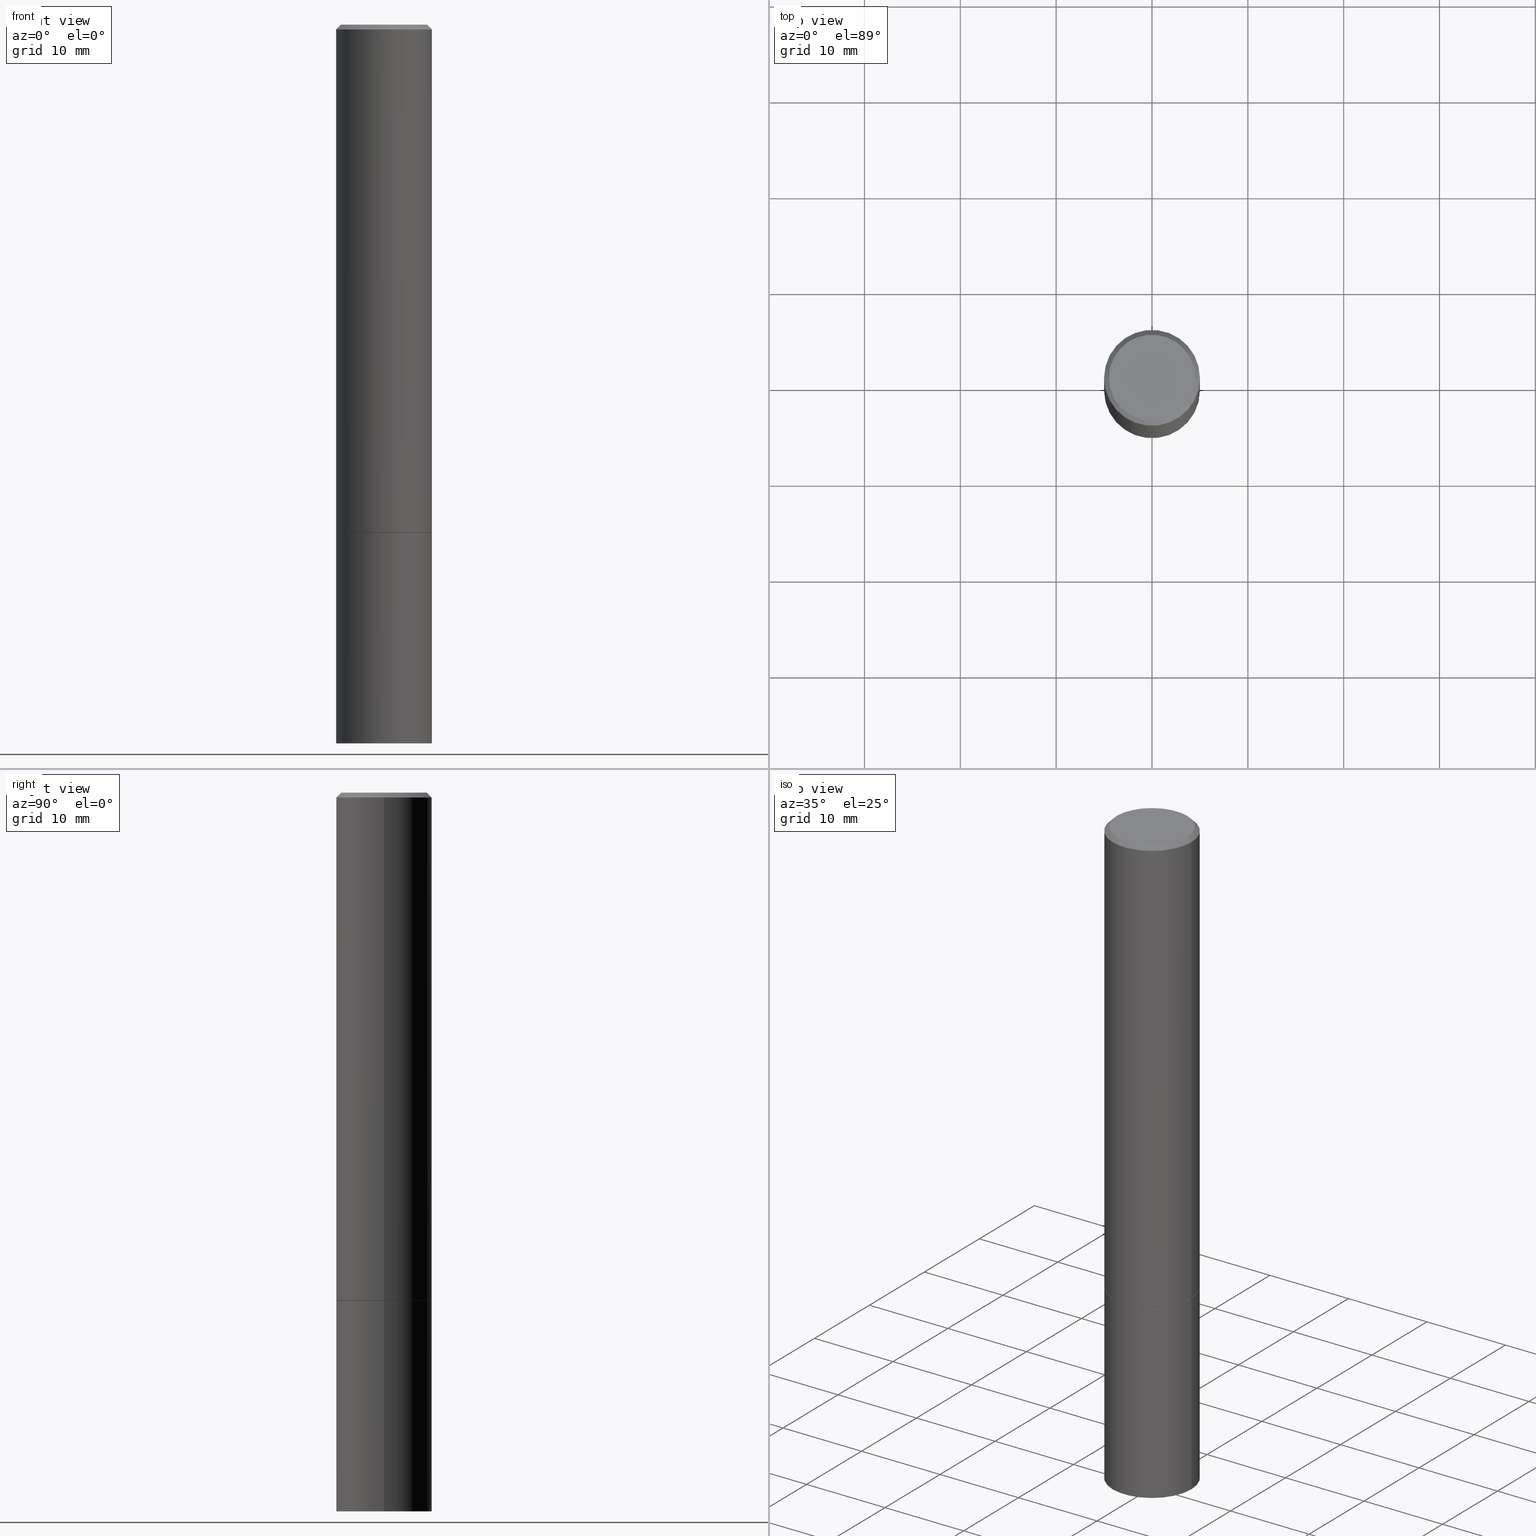
[diagram: canonical four-view strip — front | top / right | iso, engineering-drawing reading convention]
A machine part, canonical four-view strip (front | top / right | iso — engineering-drawing reading convention). The complete STEP part file that produces these views, byte-faithful:
ISO-10303-21;
HEADER;
FILE_DESCRIPTION (( 'STEP AP203' ),
    '1' );
FILE_NAME ('40557.STEP',
    '2024-02-28T02:18:00',
    ( '' ),
    ( '' ),
    'SwSTEP 2.0',
    'SolidWorks 2023',
    '' );
FILE_SCHEMA (( 'CONFIG_CONTROL_DESIGN' ));
ENDSEC;

DATA;
#1 = ORIENTED_EDGE ( 'NONE', *, *, #198, .F. ) ;
#2 = AXIS2_PLACEMENT_3D ( 'NONE', #13, #128, #274 ) ;
#3 = CARTESIAN_POINT ( 'NONE',  ( 0.000000000000000000, 0.000000000000000000, 0.000000000000000000 ) ) ;
#4 = DIMENSIONAL_EXPONENTS ( 1.000000000000000000, 0.000000000000000000, 0.000000000000000000, 0.000000000000000000, 0.000000000000000000, 0.000000000000000000, 0.000000000000000000 ) ;
#5 = CARTESIAN_POINT ( 'NONE',  ( 7.220980290903470182E-29, -1.030964609733603853E-14, -2.952799999999999869 ) ) ;
#6 = CARTESIAN_POINT ( 'NONE',  ( 1.374596203102592490E-15, 0.1968499999999927252, -2.086700000000000887 ) ) ;
#7 = CIRCLE ( 'NONE', #295, 0.1968499999999997752 ) ;
#8 = CARTESIAN_POINT ( 'NONE',  ( 1.374596203102613789E-15, 0.1968499999999896999, -2.952800000000000313 ) ) ;
#9 = DIRECTION ( 'NONE',  ( -0.7071067811865232589, 7.493145998870265808E-15, 0.7071067811865715536 ) ) ;
#10 = CARTESIAN_POINT ( 'NONE',  ( 5.100514289060338336E-29, -7.282182628425147921E-15, -2.085699999999999665 ) ) ;
#11 = PLANE ( 'NONE',  #56 ) ;
#12 = AXIS2_PLACEMENT_3D ( 'NONE', #342, #58, #234 ) ;
#13 = CARTESIAN_POINT ( 'NONE',  ( 7.220980290903470182E-29, -1.030964609733603853E-14, -2.952799999999999869 ) ) ;
#14 = APPLICATION_CONTEXT ( 'configuration controlled 3d designs of mechanical parts and assemblies' ) ;
#15 = DIRECTION ( 'NONE',  ( -2.445468806185136597E-29, 3.491481338843145583E-15, 1.000000000000000000 ) ) ;
#16 = CC_DESIGN_PERSON_AND_ORGANIZATION_ASSIGNMENT ( #208, #228, ( #159 ) ) ;
#17 = FACE_OUTER_BOUND ( 'NONE', #239, .T. ) ;
#18 = AXIS2_PLACEMENT_3D ( 'NONE', #8, #96, #184 ) ;
#19 = FACE_OUTER_BOUND ( 'NONE', #65, .T. ) ;
#20 = ORIENTED_EDGE ( 'NONE', *, *, #86, .F. ) ;
#21 = APPROVAL_STATUS ( 'not_yet_approved' ) ;
#22 = DATE_TIME_ROLE ( 'creation_date' ) ;
#23 = CIRCLE ( 'NONE', #197, 0.1968500000000000250 ) ;
#24 = ADVANCED_FACE ( 'NONE', ( #299 ), #11, .F. ) ;
#25 = DATE_AND_TIME ( #289, #63 ) ;
#26 = APPROVAL_DATE_TIME ( #138, #215 ) ;
#27 = APPROVAL_ROLE ( '' ) ;
#28 = DIRECTION ( 'NONE',  ( -2.445468806185136877E-29, 3.491481338843145188E-15, 1.000000000000000000 ) ) ;
#29 = VERTEX_POINT ( 'NONE', #149 ) ;
#30 = ORIENTED_EDGE ( 'NONE', *, *, #86, .T. ) ;
#31 = APPROVAL ( #21, 'UNSPECIFIED' ) ;
#32 = CARTESIAN_POINT ( 'NONE',  ( 0.1968500000000000250, -1.168424230043858014E-14, -2.952799999999999869 ) ) ;
#33 = VERTEX_POINT ( 'NONE', #32 ) ;
#34 = PRODUCT_DEFINITION_SHAPE ( 'NONE', 'NONE',  #298 ) ;
#35 = ADVANCED_FACE ( 'NONE', ( #120 ), #206, .T. ) ;
#36 = AXIS2_PLACEMENT_3D ( 'NONE', #3, #317, #212 ) ;
#37 = ORIENTED_EDGE ( 'NONE', *, *, #182, .T. ) ;
#38 = DIRECTION ( 'NONE',  ( 0.7071067811865469066, -7.319954787623252890E-15, -0.7071067811865479058 ) ) ;
#39 = ORIENTED_EDGE ( 'NONE', *, *, #182, .F. ) ;
#40 = DIRECTION ( 'NONE',  ( 1.000000000000000000, -6.982962677686266711E-15, 4.875932113059884174E-29 ) ) ;
#41 = AXIS2_PLACEMENT_3D ( 'NONE', #75, #276, #47 ) ;
#42 = ORGANIZATION ( 'UNSPECIFIED', 'UNSPECIFIED', '' ) ;
#43 = ORIENTED_EDGE ( 'NONE', *, *, #142, .F. ) ;
#44 = CARTESIAN_POINT ( 'NONE',  ( 5.102959757866523939E-29, -7.285674109763990928E-15, -2.086699999999999999 ) ) ;
#45 = PRODUCT ( '40557', '40557', '', ( #280 ) ) ;
#46 =( NAMED_UNIT ( * ) PLANE_ANGLE_UNIT ( ) SI_UNIT ( $, .RADIAN. ) );
#47 = DIRECTION ( 'NONE',  ( 1.000000000000000000, -6.982962677686268288E-15, 0.000000000000000000 ) ) ;
#48 = PERSON_AND_ORGANIZATION ( #185, #42 ) ;
#49 = VERTEX_POINT ( 'NONE', #68 ) ;
#50 = CARTESIAN_POINT ( 'NONE',  ( -0.1968500000000000250, 1.398703375343757393E-15, -9.682923725166783677E-30 ) ) ;
#51 = VECTOR ( 'NONE', #9, 39.37007874015748854 ) ;
#52 = DIRECTION ( 'NONE',  ( 1.000000000000000000, -6.982962677686268288E-15, 0.000000000000000000 ) ) ;
#53 = ORIENTED_EDGE ( 'NONE', *, *, #316, .T. ) ;
#54 = PERSON_AND_ORGANIZATION ( #185, #42 ) ;
#55 = COORDINATED_UNIVERSAL_TIME_OFFSET ( 5, 0, .BEHIND. ) ;
#56 = AXIS2_PLACEMENT_3D ( 'NONE', #6, #340, #186 ) ;
#57 = PERSON_AND_ORGANIZATION ( #185, #42 ) ;
#58 = DIRECTION ( 'NONE',  ( -2.445468806185136597E-29, 3.491481338843145583E-15, 1.000000000000000000 ) ) ;
#59 = ORIENTED_EDGE ( 'NONE', *, *, #76, .F. ) ;
#60 = PERSON_AND_ORGANIZATION_ROLE ( 'creator' ) ;
#61 = CARTESIAN_POINT ( 'NONE',  ( 4.890937612370276662E-31, -6.982962677686296539E-17, -0.02000000000000001776 ) ) ;
#62 = CONICAL_SURFACE ( 'NONE', #359, 0.1968499999999997752, 0.7853981633974476129 ) ;
#63 = LOCAL_TIME ( 21, 18, 0.000000000000000000, #137 ) ;
#64 = CARTESIAN_POINT ( 'NONE',  ( -0.1968499999999999139, 1.398703375343756604E-15, -9.682923725166778072E-30 ) ) ;
#65 = EDGE_LOOP ( 'NONE', ( #89, #53, #308, #290 ) ) ;
#66 = ORIENTED_EDGE ( 'NONE', *, *, #320, .T. ) ;
#67 = CIRCLE ( 'NONE', #2, 0.1968500000000000250 ) ;
#68 = CARTESIAN_POINT ( 'NONE',  ( -0.1958499999999999963, -5.888777707429612535E-15, -2.086699999999999999 ) ) ;
#69 = ORIENTED_EDGE ( 'NONE', *, *, #316, .F. ) ;
#70 = DESIGN_CONTEXT ( 'detailed design', #282, 'design' ) ;
#71 = CARTESIAN_POINT ( 'NONE',  ( 0.1968499999999997752, -1.420318657638187347E-15, -0.02000000000000001776 ) ) ;
#72 = LENGTH_MEASURE_WITH_UNIT ( LENGTH_MEASURE( 0.02539999999999999897 ), #252 );
#73 = AXIS2_PLACEMENT_3D ( 'NONE', #61, #176, #292 ) ;
#74 = CIRCLE ( 'NONE', #135, 0.1968500000000000250 ) ;
#75 = CARTESIAN_POINT ( 'NONE',  ( 5.102959757866523939E-29, -7.285674109763990928E-15, -2.086699999999999999 ) ) ;
#76 = EDGE_CURVE ( 'NONE', #29, #261, #7, .T. ) ;
#77 = EDGE_CURVE ( 'NONE', #263, #192, #345, .T. ) ;
#78 = DIRECTION ( 'NONE',  ( 2.445468806185136597E-29, -3.491481338843145583E-15, -1.000000000000000000 ) ) ;
#79 = LINE ( 'NONE', #196, #88 ) ;
#80 = CC_DESIGN_PERSON_AND_ORGANIZATION_ASSIGNMENT ( #171, #167, ( #109 ) ) ;
#81 = CONICAL_SURFACE ( 'NONE', #73, 0.1968499999999997752, 0.7853981633974476129 ) ;
#82 = EDGE_LOOP ( 'NONE', ( #348, #124 ) ) ;
#83 = APPROVAL_PERSON_ORGANIZATION ( #318, #31, #27 ) ;
#84 = EDGE_CURVE ( 'NONE', #314, #49, #313, .T. ) ;
#85 = APPROVAL_ROLE ( '' ) ;
#86 = EDGE_CURVE ( 'NONE', #91, #177, #278, .T. ) ;
#87 = PERSON_AND_ORGANIZATION ( #185, #42 ) ;
#88 = VECTOR ( 'NONE', #310, 39.37007874015748854 ) ;
#89 = ORIENTED_EDGE ( 'NONE', *, *, #84, .T. ) ;
#90 = APPROVAL_DATE_TIME ( #25, #269 ) ;
#91 = VERTEX_POINT ( 'NONE', #229 ) ;
#92 = ORIENTED_EDGE ( 'NONE', *, *, #114, .T. ) ;
#93 = DIRECTION ( 'NONE',  ( -2.445468806185136597E-29, 3.491481338843145583E-15, 1.000000000000000000 ) ) ;
#94 = DIRECTION ( 'NONE',  ( -2.445468806185136597E-29, 3.491481338843145583E-15, 1.000000000000000000 ) ) ;
#95 = ORIENTED_EDGE ( 'NONE', *, *, #142, .T. ) ;
#96 = DIRECTION ( 'NONE',  ( 2.438088387897960049E-29, -3.491481338843145188E-15, -1.000000000000000000 ) ) ;
#97 = CARTESIAN_POINT ( 'NONE',  ( -0.1958499999999999963, -5.894076161777834937E-15, -2.086699999999999999 ) ) ;
#98 = DIRECTION ( 'NONE',  ( -2.445468806185136597E-29, 3.491481338843145583E-15, 1.000000000000000000 ) ) ;
#99 = APPLICATION_PROTOCOL_DEFINITION ( 'international standard', 'config_control_design', 1994, #14 ) ;
#100 = DIRECTION ( 'NONE',  ( 1.000000000000000000, -6.982962677686266711E-15, 4.875932113059884174E-29 ) ) ;
#101 = PERSON_AND_ORGANIZATION_ROLE ( 'design_owner' ) ;
#102 = DIRECTION ( 'NONE',  ( -2.445468806185136877E-29, 3.491481338843145188E-15, 1.000000000000000000 ) ) ;
#103 = EDGE_CURVE ( 'NONE', #33, #263, #344, .T. ) ;
#104 = FACE_OUTER_BOUND ( 'NONE', #293, .T. ) ;
#105 = DIRECTION ( 'NONE',  ( -2.445468806185136597E-29, 3.491481338843145583E-15, 1.000000000000000000 ) ) ;
#106 = VERTEX_POINT ( 'NONE', #264 ) ;
#107 = APPROVAL_STATUS ( 'not_yet_approved' ) ;
#108 = AXIS2_PLACEMENT_3D ( 'NONE', #213, #187, #266 ) ;
#109 = PRODUCT_DEFINITION_FORMATION_WITH_SPECIFIED_SOURCE ( 'ANY', '', #45, .NOT_KNOWN. ) ;
#110 = COORDINATED_UNIVERSAL_TIME_OFFSET ( 5, 0, .BEHIND. ) ;
#111 = DIRECTION ( 'NONE',  ( 1.000000000000000000, -6.982962677686266711E-15, 0.000000000000000000 ) ) ;
#112 = ADVANCED_FACE ( 'NONE', ( #145 ), #173, .T. ) ;
#113 = AXIS2_PLACEMENT_3D ( 'NONE', #324, #93, #117 ) ;
#114 = EDGE_CURVE ( 'NONE', #143, #33, #23, .T. ) ;
#115 = VECTOR ( 'NONE', #38, 39.37007874015748854 ) ;
#116 = CARTESIAN_POINT ( 'NONE',  ( 4.890937612370276662E-31, -6.982962677686296539E-17, -0.02000000000000001776 ) ) ;
#117 = DIRECTION ( 'NONE',  ( 1.000000000000000000, -6.982962677686265922E-15, 4.876176775795935793E-29 ) ) ;
#118 = EDGE_LOOP ( 'NONE', ( #214, #151, #349, #1 ) ) ;
#119 = CARTESIAN_POINT ( 'NONE',  ( 5.102959757866523939E-29, -7.285674109763990928E-15, -2.086699999999999999 ) ) ;
#120 = FACE_OUTER_BOUND ( 'NONE', #330, .T. ) ;
#121 = AXIS2_PLACEMENT_3D ( 'NONE', #360, #15, #100 ) ;
#122 = ORIENTED_EDGE ( 'NONE', *, *, #103, .F. ) ;
#123 = PLANE ( 'NONE',  #18 ) ;
#124 = ORIENTED_EDGE ( 'NONE', *, *, #311, .F. ) ;
#125 = DIRECTION ( 'NONE',  ( -2.445468806185136597E-29, 3.491481338843145583E-15, 1.000000000000000000 ) ) ;
#126 = AXIS2_PLACEMENT_3D ( 'NONE', #221, #223, #248 ) ;
#127 = FACE_OUTER_BOUND ( 'NONE', #118, .T. ) ;
#128 = DIRECTION ( 'NONE',  ( -2.445468806185136597E-29, 3.491481338843145583E-15, 1.000000000000000000 ) ) ;
#129 = ADVANCED_BREP_SHAPE_REPRESENTATION ( '40557', ( #294, #170, #154 ), #180 ) ;
#130 = FACE_OUTER_BOUND ( 'NONE', #183, .T. ) ;
#131 = EDGE_CURVE ( 'NONE', #232, #29, #209, .T. ) ;
#132 = PLANE ( 'NONE',  #277 ) ;
#133 =( NAMED_UNIT ( * ) SI_UNIT ( $, .STERADIAN. ) SOLID_ANGLE_UNIT ( ) );
#134 = AXIS2_PLACEMENT_3D ( 'NONE', #361, #105, #333 ) ;
#135 = AXIS2_PLACEMENT_3D ( 'NONE', #10, #125, #242 ) ;
#136 = CARTESIAN_POINT ( 'NONE',  ( -0.1968500000000000250, -2.277302752257247033E-15, -2.085699999999999665 ) ) ;
#137 = COORDINATED_UNIVERSAL_TIME_OFFSET ( 5, 0, .BEHIND. ) ;
#138 = DATE_AND_TIME ( #257, #303 ) ;
#139 = AXIS2_PLACEMENT_3D ( 'NONE', #188, #265, #40 ) ;
#140 = SECURITY_CLASSIFICATION_LEVEL ( 'unclassified' ) ;
#141 = ADVANCED_FACE ( 'NONE', ( #319 ), #81, .T. ) ;
#142 = EDGE_CURVE ( 'NONE', #232, #106, #309, .T. ) ;
#143 = VERTEX_POINT ( 'NONE', #267 ) ;
#144 = DATE_AND_TIME ( #205, #351 ) ;
#145 = FACE_OUTER_BOUND ( 'NONE', #358, .T. ) ;
#146 = AXIS2_PLACEMENT_3D ( 'NONE', #353, #98, #158 ) ;
#147 = ORIENTED_EDGE ( 'NONE', *, *, #77, .T. ) ;
#148 = CC_DESIGN_SECURITY_CLASSIFICATION ( #159, ( #109 ) ) ;
#149 = CARTESIAN_POINT ( 'NONE',  ( -0.1968499999999997752, 1.304766576325677127E-15, -0.02000000000000001776 ) ) ;
#150 = CARTESIAN_POINT ( 'NONE',  ( 5.100514289060338336E-29, -7.282182628425147921E-15, -2.085699999999999665 ) ) ;
#151 = ORIENTED_EDGE ( 'NONE', *, *, #131, .T. ) ;
#152 = PRODUCT_RELATED_PRODUCT_CATEGORY ( 'detail', '', ( #45 ) ) ;
#153 = AXIS2_PLACEMENT_3D ( 'NONE', #165, #162, #331 ) ;
#154 = AXIS2_PLACEMENT_3D ( 'NONE', #332, #362, #354 ) ;
#155 = LINE ( 'NONE', #97, #51 ) ;
#156 = PLANE ( 'NONE',  #108 ) ;
#157 = DIRECTION ( 'NONE',  ( -2.445468806185136597E-29, 3.491481338843145583E-15, 1.000000000000000000 ) ) ;
#158 = DIRECTION ( 'NONE',  ( 1.000000000000000000, -6.982962677686266711E-15, 4.876176775795935793E-29 ) ) ;
#159 = SECURITY_CLASSIFICATION ( '', '', #140 ) ;
#160 = ORIENTED_EDGE ( 'NONE', *, *, #249, .F. ) ;
#161 = CYLINDRICAL_SURFACE ( 'NONE', #134, 0.1968499999999999139 ) ;
#162 = DIRECTION ( 'NONE',  ( -2.445468806185136597E-29, 3.491481338843145583E-15, 1.000000000000000000 ) ) ;
#163 = FACE_OUTER_BOUND ( 'NONE', #195, .T. ) ;
#164 = AXIS2_PLACEMENT_3D ( 'NONE', #116, #244, #273 ) ;
#165 = CARTESIAN_POINT ( 'NONE',  ( 5.102959757866523939E-29, -7.285674109763990928E-15, -2.086699999999999999 ) ) ;
#166 = ORIENTED_EDGE ( 'NONE', *, *, #114, .F. ) ;
#167 = PERSON_AND_ORGANIZATION_ROLE ( 'design_supplier' ) ;
#168 = VECTOR ( 'NONE', #283, 39.37007874015748854 ) ;
#169 = ADVANCED_FACE ( 'NONE', ( #127 ), #243, .T. ) ;
#170 = MANIFOLD_SOLID_BREP ( 'Body-Move/Copy2[2]', #241 ) ;
#171 = PERSON_AND_ORGANIZATION ( #185, #42 ) ;
#172 = DATE_AND_TIME ( #363, #226 ) ;
#173 = CYLINDRICAL_SURFACE ( 'NONE', #113, 0.1968500000000000250 ) ;
#174 = EDGE_LOOP ( 'NONE', ( #364, #66, #334, #39 ) ) ;
#175 = DIRECTION ( 'NONE',  ( -2.445468806185136877E-29, 3.491481338843145188E-15, 1.000000000000000000 ) ) ;
#176 = DIRECTION ( 'NONE',  ( 2.445468806185136597E-29, -3.491481338843145583E-15, -1.000000000000000000 ) ) ;
#177 = VERTEX_POINT ( 'NONE', #329 ) ;
#178 = AXIS2_PLACEMENT_3D ( 'NONE', #44, #245, #52 ) ;
#179 = ADVANCED_FACE ( 'NONE', ( #304 ), #132, .F. ) ;
#180 =( GEOMETRIC_REPRESENTATION_CONTEXT ( 3 ) GLOBAL_UNCERTAINTY_ASSIGNED_CONTEXT ( ( #181 ) ) GLOBAL_UNIT_ASSIGNED_CONTEXT ( ( #300, #46, #133 ) ) REPRESENTATION_CONTEXT ( 'NONE', 'WORKASPACE' ) );
#181 = UNCERTAINTY_MEASURE_WITH_UNIT (LENGTH_MEASURE( 1.000000000000000082E-05 ), #300, 'distance_accuracy_value', 'NONE');
#182 = EDGE_CURVE ( 'NONE', #91, #29, #305, .T. ) ;
#183 = EDGE_LOOP ( 'NONE', ( #258, #166 ) ) ;
#184 = DIRECTION ( 'NONE',  ( -1.000000000000000000, 6.982962677686265922E-15, -4.876176775795935793E-29 ) ) ;
#185 = PERSON ( 'UNSPECIFIED', 'UNSPECIFIED', 'UNSPECIFIED', ('UNSPECIFIED'), ('UNSPECIFIED'), ('UNSPECIFIED') ) ;
#186 = DIRECTION ( 'NONE',  ( -1.000000000000000000, 6.982962677686265922E-15, -4.876176775795935793E-29 ) ) ;
#187 = DIRECTION ( 'NONE',  ( -2.438088387897960049E-29, 3.491481338843145188E-15, 1.000000000000000000 ) ) ;
#188 = CARTESIAN_POINT ( 'NONE',  ( -1.043851414335219820E-46, 1.490343170380447200E-32, 4.268512490100411279E-18 ) ) ;
#189 = ORIENTED_EDGE ( 'NONE', *, *, #198, .T. ) ;
#190 = CARTESIAN_POINT ( 'NONE',  ( -0.1968499999999997752, 1.304766576325677127E-15, -0.02000000000000001776 ) ) ;
#191 = APPROVAL_PERSON_ORGANIZATION ( #87, #269, #85 ) ;
#192 = VERTEX_POINT ( 'NONE', #251 ) ;
#193 = DIRECTION ( 'NONE',  ( 2.438088387897960049E-29, -3.491481338843145188E-15, -1.000000000000000000 ) ) ;
#194 = DIRECTION ( 'NONE',  ( -1.000000000000000000, 6.982962677686266711E-15, 0.000000000000000000 ) ) ;
#195 = EDGE_LOOP ( 'NONE', ( #237, #95, #189, #59 ) ) ;
#196 = CARTESIAN_POINT ( 'NONE',  ( 0.1958499999999999963, -8.653287350188846522E-15, -2.086699999999999999 ) ) ;
#197 = AXIS2_PLACEMENT_3D ( 'NONE', #5, #210, #231 ) ;
#198 = EDGE_CURVE ( 'NONE', #106, #261, #220, .T. ) ;
#199 = CC_DESIGN_APPROVAL ( #215, ( #159 ) ) ;
#200 = ORIENTED_EDGE ( 'NONE', *, *, #77, .F. ) ;
#201 = DATE_TIME_ROLE ( 'classification_date' ) ;
#202 = ADVANCED_FACE ( 'NONE', ( #104 ), #286, .T. ) ;
#203 = CALENDAR_DATE ( 2024, 27, 2 ) ;
#204 = VECTOR ( 'NONE', #279, 39.37007874015748143 ) ;
#205 = CALENDAR_DATE ( 2024, 27, 2 ) ;
#206 = CYLINDRICAL_SURFACE ( 'NONE', #36, 0.1968500000000000250 ) ;
#207 = ORIENTED_EDGE ( 'NONE', *, *, #288, .T. ) ;
#208 = PERSON_AND_ORGANIZATION ( #185, #42 ) ;
#209 = LINE ( 'NONE', #64, #350 ) ;
#210 = DIRECTION ( 'NONE',  ( -2.445468806185136597E-29, 3.491481338843145583E-15, 1.000000000000000000 ) ) ;
#211 = AXIS2_PLACEMENT_3D ( 'NONE', #119, #322, #347 ) ;
#212 = DIRECTION ( 'NONE',  ( 1.000000000000000000, -6.982962677686265922E-15, 4.876176775795935793E-29 ) ) ;
#213 = CARTESIAN_POINT ( 'NONE',  ( 5.102959757866523939E-29, -7.285674109763990928E-15, -2.086699999999999999 ) ) ;
#214 = ORIENTED_EDGE ( 'NONE', *, *, #366, .T. ) ;
#215 = APPROVAL ( #259, 'UNSPECIFIED' ) ;
#216 = CARTESIAN_POINT ( 'NONE',  ( 4.890937612370276662E-31, -6.982962677686296539E-17, -0.02000000000000001776 ) ) ;
#217 = CARTESIAN_POINT ( 'NONE',  ( 0.1958499999999999963, -8.653287350188846522E-15, -2.086699999999999999 ) ) ;
#218 = ADVANCED_FACE ( 'NONE', ( #19 ), #335, .T. ) ;
#219 = CIRCLE ( 'NONE', #153, 0.1968500000000000250 ) ;
#220 = LINE ( 'NONE', #355, #224 ) ;
#221 = CARTESIAN_POINT ( 'NONE',  ( 5.102959757866523939E-29, -7.285674109763990928E-15, -2.086699999999999999 ) ) ;
#222 = ORIENTED_EDGE ( 'NONE', *, *, #103, .T. ) ;
#223 = DIRECTION ( 'NONE',  ( -2.445468806185136597E-29, 3.491481338843145583E-15, 1.000000000000000000 ) ) ;
#224 = VECTOR ( 'NONE', #102, 39.37007874015748143 ) ;
#225 = DATE_AND_TIME ( #203, #321 ) ;
#226 = LOCAL_TIME ( 21, 18, 0.000000000000000000, #312 ) ;
#227 = EDGE_CURVE ( 'NONE', #177, #91, #328, .T. ) ;
#228 = PERSON_AND_ORGANIZATION_ROLE ( 'classification_officer' ) ;
#229 = CARTESIAN_POINT ( 'NONE',  ( -0.1768499999999997851, 1.269851762937246069E-15, 4.268512490091652920E-18 ) ) ;
#230 = FACE_OUTER_BOUND ( 'NONE', #82, .T. ) ;
#231 = DIRECTION ( 'NONE',  ( 1.000000000000000000, -6.982962677686267499E-15, 0.000000000000000000 ) ) ;
#232 = VERTEX_POINT ( 'NONE', #136 ) ;
#233 = CARTESIAN_POINT ( 'NONE',  ( 0.1968500000000000250, -1.374596203102541608E-15, 9.598753983154300858E-30 ) ) ;
#234 = DIRECTION ( 'NONE',  ( 1.000000000000000000, -6.982962677686267499E-15, 0.000000000000000000 ) ) ;
#235 = VECTOR ( 'NONE', #28, 39.37007874015748143 ) ;
#236 = ORIENTED_EDGE ( 'NONE', *, *, #320, .F. ) ;
#237 = ORIENTED_EDGE ( 'NONE', *, *, #131, .F. ) ;
#238 = CC_DESIGN_DATE_AND_TIME_ASSIGNMENT ( #225, #201, ( #159 ) ) ;
#239 = EDGE_LOOP ( 'NONE', ( #236, #20, #37, #272 ) ) ;
#240 = LINE ( 'NONE', #296, #115 ) ;
#241 = CLOSED_SHELL ( 'NONE', ( #218, #169, #141, #250, #285, #202, #338, #179 ) ) ;
#242 = DIRECTION ( 'NONE',  ( 1.000000000000000000, -6.982962677686267499E-15, 0.000000000000000000 ) ) ;
#243 = CYLINDRICAL_SURFACE ( 'NONE', #146, 0.1968499999999999139 ) ;
#244 = DIRECTION ( 'NONE',  ( -2.445468806185136597E-29, 3.491481338843145583E-15, 1.000000000000000000 ) ) ;
#245 = DIRECTION ( 'NONE',  ( -2.445468806185136597E-29, 3.491481338843145583E-15, 1.000000000000000000 ) ) ;
#246 = CC_DESIGN_PERSON_AND_ORGANIZATION_ASSIGNMENT ( #54, #337, ( #109 ) ) ;
#247 = DIRECTION ( 'NONE',  ( -1.000000000000000000, 6.982962677686265922E-15, -4.876176775795935793E-29 ) ) ;
#248 = DIRECTION ( 'NONE',  ( 1.000000000000000000, -6.982962677686268288E-15, 0.000000000000000000 ) ) ;
#249 = EDGE_CURVE ( 'NONE', #192, #263, #219, .T. ) ;
#250 = ADVANCED_FACE ( 'NONE', ( #17 ), #62, .T. ) ;
#251 = CARTESIAN_POINT ( 'NONE',  ( -0.1968500000000000250, -7.398956728206258518E-15, -2.086699999999999999 ) ) ;
#252 =( LENGTH_UNIT ( ) NAMED_UNIT ( * ) SI_UNIT ( $, .METRE. ) );
#253 = APPROVAL_DATE_TIME ( #172, #31 ) ;
#254 = EDGE_CURVE ( 'NONE', #143, #192, #306, .T. ) ;
#255 = CIRCLE ( 'NONE', #178, 0.1958499999999999963 ) ;
#256 = SHAPE_DEFINITION_REPRESENTATION ( #34, #129 ) ;
#257 = CALENDAR_DATE ( 2024, 27, 2 ) ;
#258 = ORIENTED_EDGE ( 'NONE', *, *, #275, .F. ) ;
#259 = APPROVAL_STATUS ( 'not_yet_approved' ) ;
#260 = AXIS2_PLACEMENT_3D ( 'NONE', #150, #94, #297 ) ;
#261 = VERTEX_POINT ( 'NONE', #71 ) ;
#262 = CC_DESIGN_DATE_AND_TIME_ASSIGNMENT ( #144, #22, ( #298 ) ) ;
#263 = VERTEX_POINT ( 'NONE', #327 ) ;
#264 = CARTESIAN_POINT ( 'NONE',  ( 0.1968500000000000250, -8.656778831527691107E-15, -2.085699999999999665 ) ) ;
#265 = DIRECTION ( 'NONE',  ( -2.445468806185136597E-29, 3.491481338843145583E-15, 1.000000000000000000 ) ) ;
#266 = DIRECTION ( 'NONE',  ( 1.000000000000000000, -6.982962677686265922E-15, 4.876176775795935793E-29 ) ) ;
#267 = CARTESIAN_POINT ( 'NONE',  ( -0.1968500000000000250, -7.398956728206258518E-15, -2.952799999999999869 ) ) ;
#268 = CIRCLE ( 'NONE', #164, 0.1968499999999997752 ) ;
#269 = APPROVAL ( #107, 'UNSPECIFIED' ) ;
#270 = CC_DESIGN_APPROVAL ( #269, ( #109 ) ) ;
#271 = CARTESIAN_POINT ( 'NONE',  ( 4.890937612370276662E-31, -6.982962677686296539E-17, -0.02000000000000001776 ) ) ;
#272 = ORIENTED_EDGE ( 'NONE', *, *, #76, .T. ) ;
#273 = DIRECTION ( 'NONE',  ( 1.000000000000000000, -6.982962677686266711E-15, 0.000000000000000000 ) ) ;
#274 = DIRECTION ( 'NONE',  ( 1.000000000000000000, -6.982962677686267499E-15, 0.000000000000000000 ) ) ;
#275 = EDGE_CURVE ( 'NONE', #33, #143, #67, .T. ) ;
#276 = DIRECTION ( 'NONE',  ( -2.445468806185136597E-29, 3.491481338843145583E-15, 1.000000000000000000 ) ) ;
#277 = AXIS2_PLACEMENT_3D ( 'NONE', #356, #193, #247 ) ;
#278 = CIRCLE ( 'NONE', #139, 0.1768499999999997851 ) ;
#279 = DIRECTION ( 'NONE',  ( -2.445468806185136877E-29, 3.491481338843145188E-15, 1.000000000000000000 ) ) ;
#280 = MECHANICAL_CONTEXT ( 'NONE', #14, 'mechanical' ) ;
#281 = ORIENTED_EDGE ( 'NONE', *, *, #254, .T. ) ;
#282 = APPLICATION_CONTEXT ( 'configuration controlled 3d designs of mechanical parts and assemblies' ) ;
#283 = DIRECTION ( 'NONE',  ( -0.7071067811865469066, 2.468850131082251144E-15, -0.7071067811865479058 ) ) ;
#284 = APPROVAL_ROLE ( '' ) ;
#285 = ADVANCED_FACE ( 'NONE', ( #163 ), #161, .T. ) ;
#286 = CONICAL_SURFACE ( 'NONE', #126, 0.1958499999999999963, 0.7853981633974141952 ) ;
#287 = APPLICATION_PROTOCOL_DEFINITION ( 'international standard', 'config_control_design', 1994, #282 ) ;
#288 = EDGE_CURVE ( 'NONE', #314, #106, #79, .T. ) ;
#289 = CALENDAR_DATE ( 2024, 27, 2 ) ;
#290 = ORIENTED_EDGE ( 'NONE', *, *, #288, .F. ) ;
#291 = ORIENTED_EDGE ( 'NONE', *, *, #311, .T. ) ;
#292 = DIRECTION ( 'NONE',  ( -1.000000000000000000, 6.982962677686266711E-15, 0.000000000000000000 ) ) ;
#293 = EDGE_LOOP ( 'NONE', ( #69, #291, #207, #43 ) ) ;
#294 = MANIFOLD_SOLID_BREP ( 'Body-Move/Copy2[1]', #302 ) ;
#295 = AXIS2_PLACEMENT_3D ( 'NONE', #216, #157, #111 ) ;
#296 = CARTESIAN_POINT ( 'NONE',  ( 0.1968499999999997752, -1.420318657638187347E-15, -0.02000000000000001776 ) ) ;
#297 = DIRECTION ( 'NONE',  ( 1.000000000000000000, -6.982962677686267499E-15, 0.000000000000000000 ) ) ;
#298 = PRODUCT_DEFINITION ( 'UNKNOWN', '', #109, #70 ) ;
#299 = FACE_OUTER_BOUND ( 'NONE', #301, .T. ) ;
#300 =( CONVERSION_BASED_UNIT ( 'INCH', #72 ) LENGTH_UNIT ( ) NAMED_UNIT ( #4 ) );
#301 = EDGE_LOOP ( 'NONE', ( #147, #323 ) ) ;
#302 = CLOSED_SHELL ( 'NONE', ( #35, #315, #24, #112 ) ) ;
#303 = LOCAL_TIME ( 21, 18, 0.000000000000000000, #55 ) ;
#304 = FACE_OUTER_BOUND ( 'NONE', #325, .T. ) ;
#305 = LINE ( 'NONE', #190, #168 ) ;
#306 = LINE ( 'NONE', #50, #204 ) ;
#307 = CC_DESIGN_PERSON_AND_ORGANIZATION_ASSIGNMENT ( #341, #60, ( #298 ) ) ;
#308 = ORIENTED_EDGE ( 'NONE', *, *, #366, .F. ) ;
#309 = CIRCLE ( 'NONE', #260, 0.1968500000000000250 ) ;
#310 = DIRECTION ( 'NONE',  ( 0.7071067811865232589, -2.468850131082003836E-15, 0.7071067811865715536 ) ) ;
#311 = EDGE_CURVE ( 'NONE', #49, #314, #255, .T. ) ;
#312 = COORDINATED_UNIVERSAL_TIME_OFFSET ( 5, 0, .BEHIND. ) ;
#313 = CIRCLE ( 'NONE', #211, 0.1958499999999999963 ) ;
#314 = VERTEX_POINT ( 'NONE', #217 ) ;
#315 = ADVANCED_FACE ( 'NONE', ( #130 ), #123, .T. ) ;
#316 = EDGE_CURVE ( 'NONE', #49, #232, #155, .T. ) ;
#317 = DIRECTION ( 'NONE',  ( -2.445468806185136597E-29, 3.491481338843145583E-15, 1.000000000000000000 ) ) ;
#318 = PERSON_AND_ORGANIZATION ( #185, #42 ) ;
#319 = FACE_OUTER_BOUND ( 'NONE', #174, .T. ) ;
#320 = EDGE_CURVE ( 'NONE', #177, #261, #240, .T. ) ;
#321 = LOCAL_TIME ( 21, 18, 0.000000000000000000, #110 ) ;
#322 = DIRECTION ( 'NONE',  ( -2.445468806185136597E-29, 3.491481338843145583E-15, 1.000000000000000000 ) ) ;
#323 = ORIENTED_EDGE ( 'NONE', *, *, #249, .T. ) ;
#324 = CARTESIAN_POINT ( 'NONE',  ( 0.000000000000000000, 0.000000000000000000, 0.000000000000000000 ) ) ;
#325 = EDGE_LOOP ( 'NONE', ( #30, #326 ) ) ;
#326 = ORIENTED_EDGE ( 'NONE', *, *, #227, .T. ) ;
#327 = CARTESIAN_POINT ( 'NONE',  ( 0.1968500000000000250, -8.660270312866532536E-15, -2.086699999999999999 ) ) ;
#328 = CIRCLE ( 'NONE', #121, 0.1768499999999997851 ) ;
#329 = CARTESIAN_POINT ( 'NONE',  ( 0.1768499999999997851, -1.316798864272040563E-15, 4.268512490109333727E-18 ) ) ;
#330 = EDGE_LOOP ( 'NONE', ( #352, #281, #200, #122 ) ) ;
#331 = DIRECTION ( 'NONE',  ( 1.000000000000000000, -6.982962677686267499E-15, 0.000000000000000000 ) ) ;
#332 = CARTESIAN_POINT ( 'NONE',  ( 0.000000000000000000, 0.000000000000000000, 0.000000000000000000 ) ) ;
#333 = DIRECTION ( 'NONE',  ( 1.000000000000000000, -6.982962677686266711E-15, 4.876176775795935793E-29 ) ) ;
#334 = ORIENTED_EDGE ( 'NONE', *, *, #336, .T. ) ;
#335 = CONICAL_SURFACE ( 'NONE', #41, 0.1958499999999999963, 0.7853981633974141952 ) ;
#336 = EDGE_CURVE ( 'NONE', #261, #29, #268, .T. ) ;
#337 = PERSON_AND_ORGANIZATION_ROLE ( 'creator' ) ;
#338 = ADVANCED_FACE ( 'NONE', ( #230 ), #156, .F. ) ;
#339 = CC_DESIGN_APPROVAL ( #31, ( #298 ) ) ;
#340 = DIRECTION ( 'NONE',  ( 2.438088387897960049E-29, -3.491481338843145188E-15, -1.000000000000000000 ) ) ;
#341 = PERSON_AND_ORGANIZATION ( #185, #42 ) ;
#342 = CARTESIAN_POINT ( 'NONE',  ( 5.102959757866523939E-29, -7.285674109763990928E-15, -2.086699999999999999 ) ) ;
#343 = ORIENTED_EDGE ( 'NONE', *, *, #254, .F. ) ;
#344 = LINE ( 'NONE', #233, #235 ) ;
#345 = CIRCLE ( 'NONE', #12, 0.1968500000000000250 ) ;
#346 = APPROVAL_PERSON_ORGANIZATION ( #57, #215, #284 ) ;
#347 = DIRECTION ( 'NONE',  ( 1.000000000000000000, -6.982962677686268288E-15, 0.000000000000000000 ) ) ;
#348 = ORIENTED_EDGE ( 'NONE', *, *, #84, .F. ) ;
#349 = ORIENTED_EDGE ( 'NONE', *, *, #336, .F. ) ;
#350 = VECTOR ( 'NONE', #175, 39.37007874015748143 ) ;
#351 = LOCAL_TIME ( 21, 18, 0.000000000000000000, #365 ) ;
#352 = ORIENTED_EDGE ( 'NONE', *, *, #275, .T. ) ;
#353 = CARTESIAN_POINT ( 'NONE',  ( 0.000000000000000000, 0.000000000000000000, 0.000000000000000000 ) ) ;
#354 = DIRECTION ( 'NONE',  ( 1.000000000000000000, 0.000000000000000000, 0.000000000000000000 ) ) ;
#355 = CARTESIAN_POINT ( 'NONE',  ( 0.1968499999999999139, -1.374596203102541017E-15, 9.598753983154295253E-30 ) ) ;
#356 = CARTESIAN_POINT ( 'NONE',  ( 1.234936949548814617E-15, 0.1768499999999997851, -6.153342185293593634E-16 ) ) ;
#357 = CC_DESIGN_PERSON_AND_ORGANIZATION_ASSIGNMENT ( #48, #101, ( #45 ) ) ;
#358 = EDGE_LOOP ( 'NONE', ( #343, #92, #222, #160 ) ) ;
#359 = AXIS2_PLACEMENT_3D ( 'NONE', #271, #78, #194 ) ;
#360 = CARTESIAN_POINT ( 'NONE',  ( -1.043851414335219820E-46, 1.490343170380447200E-32, 4.268512490100411279E-18 ) ) ;
#361 = CARTESIAN_POINT ( 'NONE',  ( 0.000000000000000000, 0.000000000000000000, 0.000000000000000000 ) ) ;
#362 = DIRECTION ( 'NONE',  ( 0.000000000000000000, 0.000000000000000000, 1.000000000000000000 ) ) ;
#363 = CALENDAR_DATE ( 2024, 27, 2 ) ;
#364 = ORIENTED_EDGE ( 'NONE', *, *, #227, .F. ) ;
#365 = COORDINATED_UNIVERSAL_TIME_OFFSET ( 5, 0, .BEHIND. ) ;
#366 = EDGE_CURVE ( 'NONE', #106, #232, #74, .T. ) ;
ENDSEC;
END-ISO-10303-21;
